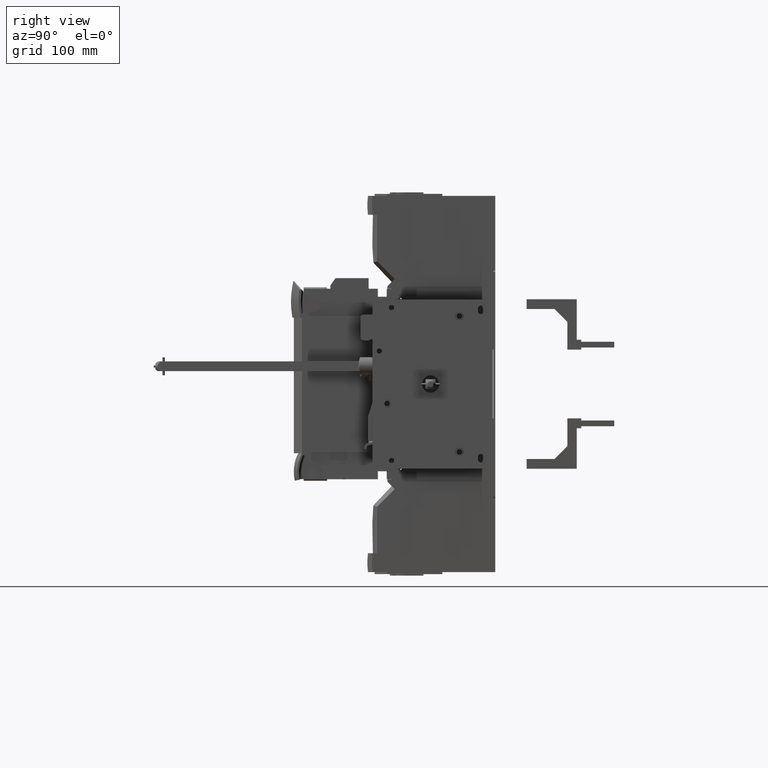
[diagram: clean part render]
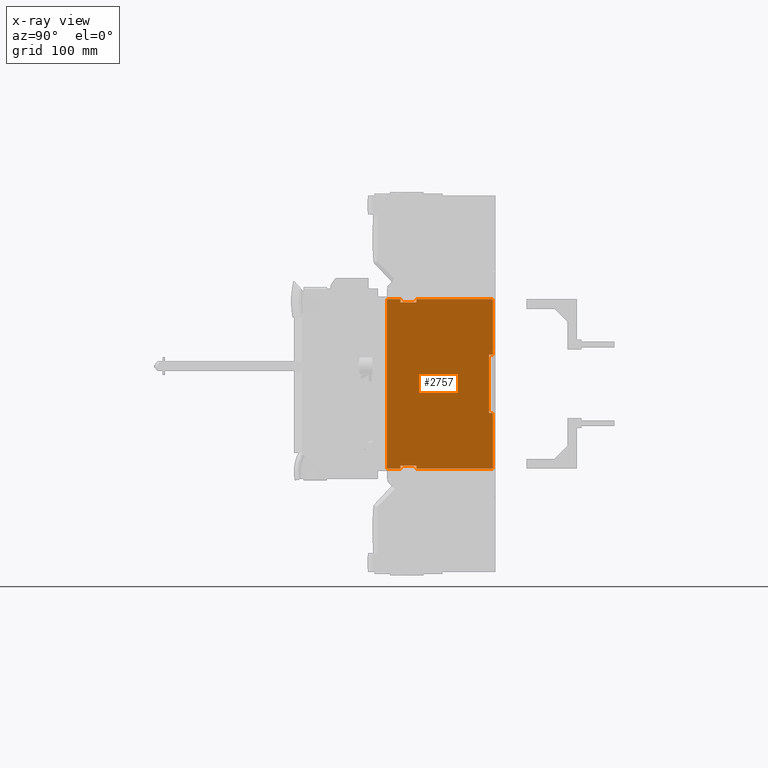
[diagram: x-ray — body ghosted, one internal face saturated and labeled with its STEP entity id]
A machine part, right view, then the same camera in x-ray: the body is ghosted and one INTERNAL B-rep face — a face not visible from any outside direction — is saturated and labeled: STEP entity #2757.
In plain terms, the highlighted planar face has unit normal (-1, 0, 0).
Its self-contained STEP definition (entity closure, byte-faithful):
#2757=ADVANCED_FACE('',(#8239),#5631,.T.);
#5631=PLANE('',#59047);
#8239=FACE_OUTER_BOUND('',#11144,.T.);
#11144=EDGE_LOOP('',(#16560,#16561,#16562,#16563,#16564,#16565,#16566,#16567,
#16568,#16569,#16570,#16571,#16572,#16573,#16574,#16575));
#16560=ORIENTED_EDGE('',*,*,#37352,.T.);
#16561=ORIENTED_EDGE('',*,*,#37353,.T.);
#16562=ORIENTED_EDGE('',*,*,#37354,.F.);
#16563=ORIENTED_EDGE('',*,*,#37355,.F.);
#16564=ORIENTED_EDGE('',*,*,#37356,.T.);
#16565=ORIENTED_EDGE('',*,*,#37357,.T.);
#16566=ORIENTED_EDGE('',*,*,#37358,.F.);
#16567=ORIENTED_EDGE('',*,*,#37345,.T.);
#16568=ORIENTED_EDGE('',*,*,#37351,.F.);
#16569=ORIENTED_EDGE('',*,*,#37349,.T.);
#16570=ORIENTED_EDGE('',*,*,#37359,.F.);
#16571=ORIENTED_EDGE('',*,*,#37360,.T.);
#16572=ORIENTED_EDGE('',*,*,#37361,.T.);
#16573=ORIENTED_EDGE('',*,*,#37362,.F.);
#16574=ORIENTED_EDGE('',*,*,#37363,.F.);
#16575=ORIENTED_EDGE('',*,*,#37364,.T.);
#31401=VERTEX_POINT('',#85023);
#31404=VERTEX_POINT('',#85028);
#31405=VERTEX_POINT('',#85032);
#31408=VERTEX_POINT('',#85037);
#31409=VERTEX_POINT('',#85044);
#31410=VERTEX_POINT('',#85045);
#31411=VERTEX_POINT('',#85047);
#31412=VERTEX_POINT('',#85049);
#31413=VERTEX_POINT('',#85051);
#31414=VERTEX_POINT('',#85053);
#31415=VERTEX_POINT('',#85055);
#31416=VERTEX_POINT('',#85058);
#31417=VERTEX_POINT('',#85060);
#31418=VERTEX_POINT('',#85062);
#31419=VERTEX_POINT('',#85064);
#31420=VERTEX_POINT('',#85066);
#37345=EDGE_CURVE('',#31401,#31404,#45321,.T.);
#37349=EDGE_CURVE('',#31405,#31408,#45325,.T.);
#37351=EDGE_CURVE('',#31405,#31404,#45327,.T.);
#37352=EDGE_CURVE('',#31409,#31410,#45328,.T.);
#37353=EDGE_CURVE('',#31410,#31411,#45329,.T.);
#37354=EDGE_CURVE('',#31412,#31411,#45330,.T.);
#37355=EDGE_CURVE('',#31413,#31412,#45331,.T.);
#37356=EDGE_CURVE('',#31413,#31414,#45332,.T.);
#37357=EDGE_CURVE('',#31414,#31415,#45333,.T.);
#37358=EDGE_CURVE('',#31401,#31415,#45334,.T.);
#37359=EDGE_CURVE('',#31416,#31408,#45335,.T.);
#37360=EDGE_CURVE('',#31416,#31417,#45336,.T.);
#37361=EDGE_CURVE('',#31417,#31418,#45337,.T.);
#37362=EDGE_CURVE('',#31419,#31418,#45338,.T.);
#37363=EDGE_CURVE('',#31420,#31419,#45339,.T.);
#37364=EDGE_CURVE('',#31420,#31409,#45340,.T.);
#45321=LINE('',#85029,#52386);
#45325=LINE('',#85038,#52390);
#45327=LINE('',#85041,#52392);
#45328=LINE('',#85043,#52393);
#45329=LINE('',#85046,#52394);
#45330=LINE('',#85048,#52395);
#45331=LINE('',#85050,#52396);
#45332=LINE('',#85052,#52397);
#45333=LINE('',#85054,#52398);
#45334=LINE('',#85056,#52399);
#45335=LINE('',#85057,#52400);
#45336=LINE('',#85059,#52401);
#45337=LINE('',#85061,#52402);
#45338=LINE('',#85063,#52403);
#45339=LINE('',#85065,#52404);
#45340=LINE('',#85067,#52405);
#52386=VECTOR('',#64326,1.);
#52390=VECTOR('',#64332,1.);
#52392=VECTOR('',#64336,1.);
#52393=VECTOR('',#64339,1.);
#52394=VECTOR('',#64340,1.);
#52395=VECTOR('',#64341,1.);
#52396=VECTOR('',#64342,1.);
#52397=VECTOR('',#64343,1.);
#52398=VECTOR('',#64344,1.);
#52399=VECTOR('',#64345,1.);
#52400=VECTOR('',#64346,1.);
#52401=VECTOR('',#64347,1.);
#52402=VECTOR('',#64348,1.);
#52403=VECTOR('',#64349,1.);
#52404=VECTOR('',#64350,1.);
#52405=VECTOR('',#64351,1.);
#59047=AXIS2_PLACEMENT_3D('',#85068,#64352,#64353);
#64326=DIRECTION('',(-1.81645629665549E-012,-1.,0.));
#64332=DIRECTION('',(1.81645629665549E-012,1.,0.));
#64336=DIRECTION('',(0.,0.,1.));
#64339=DIRECTION('',(0.,0.,1.));
#64340=DIRECTION('',(1.81645629665549E-012,1.,0.));
#64341=DIRECTION('',(0.,0.,1.));
#64342=DIRECTION('',(0.,-1.,0.));
#64343=DIRECTION('',(0.,0.,1.));
#64344=DIRECTION('',(0.,1.,0.));
#64345=DIRECTION('',(0.,0.,1.));
#64346=DIRECTION('',(0.,0.,1.));
#64347=DIRECTION('',(0.,-1.,0.));
#64348=DIRECTION('',(0.,0.,1.));
#64349=DIRECTION('',(0.,1.,0.));
#64350=DIRECTION('',(0.,0.,1.));
#64351=DIRECTION('',(0.,-1.,0.));
#64352=DIRECTION('',(-1.,1.81645629665549E-012,0.));
#64353=DIRECTION('',(-1.81632486828676E-012,-1.,0.));
#85023=CARTESIAN_POINT('',(-4287.19999999968,-273.999999999833,43.6499999999948));
#85028=CARTESIAN_POINT('',(-4287.19999999969,-278.799999999833,43.6499999999948));
#85029=CARTESIAN_POINT('',(-4287.19999999968,-276.299999999833,43.6499999999948));
#85032=CARTESIAN_POINT('',(-4287.19999999969,-278.799999999833,-27.9500000000051));
#85037=CARTESIAN_POINT('',(-4287.19999999968,-273.999999999833,-27.9500000000051));
#85038=CARTESIAN_POINT('',(-4287.19999999968,-276.299999999833,-27.9500000000051));
#85041=CARTESIAN_POINT('',(-4287.19999999969,-278.799999999833,-27.9500000000051));
#85043=CARTESIAN_POINT('',(-4287.19999999968,-404.299999999832,-83.1500000000072));
#85044=CARTESIAN_POINT('',(-4287.19999999991,-404.299999999832,-96.150000000005));
#85045=CARTESIAN_POINT('',(-4287.19999999968,-404.299999999832,111.849999999995));
#85046=CARTESIAN_POINT('',(-4287.19999999968,-276.299999999833,111.849999999995));
#85047=CARTESIAN_POINT('',(-4287.19999999968,-387.499999999841,111.849999999995));
#85048=CARTESIAN_POINT('',(-4287.19999999968,-387.499999999841,111.849999999995));
#85049=CARTESIAN_POINT('',(-4287.19999999968,-387.499999999841,107.849999999995));
#85050=CARTESIAN_POINT('',(-4287.19999999968,-387.499999999874,107.849999999995));
#85051=CARTESIAN_POINT('',(-4287.19999999968,-367.699999999855,107.849999999995));
#85052=CARTESIAN_POINT('',(-4287.19999999968,-367.699999999833,-109.150000000005));
#85053=CARTESIAN_POINT('',(-4287.19999999985,-367.699999999833,111.849999999995));
#85054=CARTESIAN_POINT('',(-4287.19999999968,-276.999999999856,111.849999999995));
#85055=CARTESIAN_POINT('',(-4287.19999999968,-273.999999999833,111.849999999995));
#85056=CARTESIAN_POINT('',(-4287.19999999968,-273.999999999833,-109.450000000005));
#85057=CARTESIAN_POINT('',(-4287.19999999968,-273.999999999833,-109.450000000005));
#85058=CARTESIAN_POINT('',(-4287.19999999968,-273.999999999833,-96.1500000000052));
#85059=CARTESIAN_POINT('',(-4287.19999999968,-276.999999999856,-96.1500000000052));
#85060=CARTESIAN_POINT('',(-4287.19999999985,-367.699999999833,-96.1500000000052));
#85061=CARTESIAN_POINT('',(-4287.19999999968,-367.699999999833,-109.150000000005));
#85062=CARTESIAN_POINT('',(-4287.19999999968,-367.699999999855,-92.1500000000052));
#85063=CARTESIAN_POINT('',(-4287.19999999968,-387.499999999874,-92.1500000000052));
#85064=CARTESIAN_POINT('',(-4287.19999999968,-387.499999999841,-92.1500000000052));
#85065=CARTESIAN_POINT('',(-4287.19999999968,-387.499999999841,-96.1500000000052));
#85066=CARTESIAN_POINT('',(-4287.19999999968,-387.499999999841,-96.1500000000052));
#85067=CARTESIAN_POINT('',(-4287.19999999968,-276.999999999856,-96.1500000000052));
#85068=CARTESIAN_POINT('',(-4287.19999999968,-276.299999999833,-27.9500000000051));